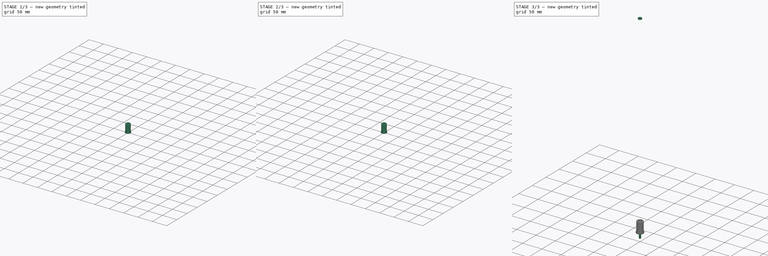
[diagram: build sequence overview — one tinted view per stage of 3, left to right]
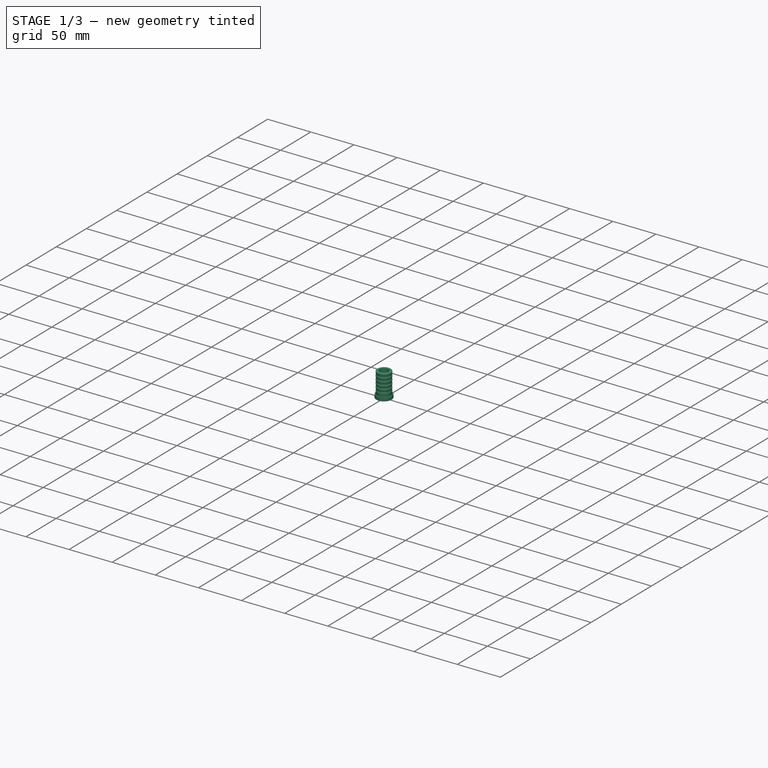
[diagram: stage 1 of 3 — iso view after this stage's code; geometry added in this stage tinted green]
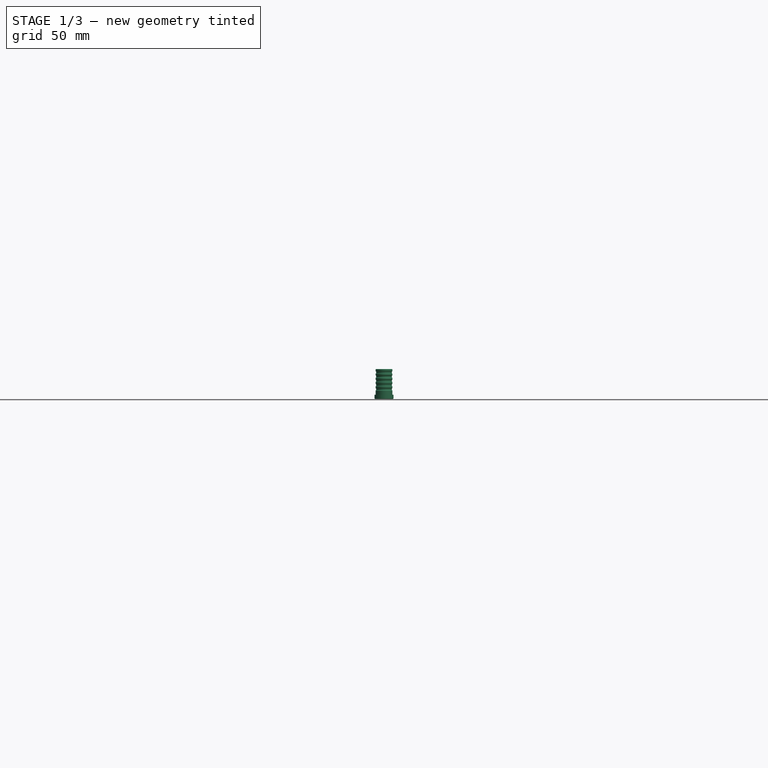
[diagram: stage 1 of 3 — front view after this stage's code; geometry added in this stage tinted green]
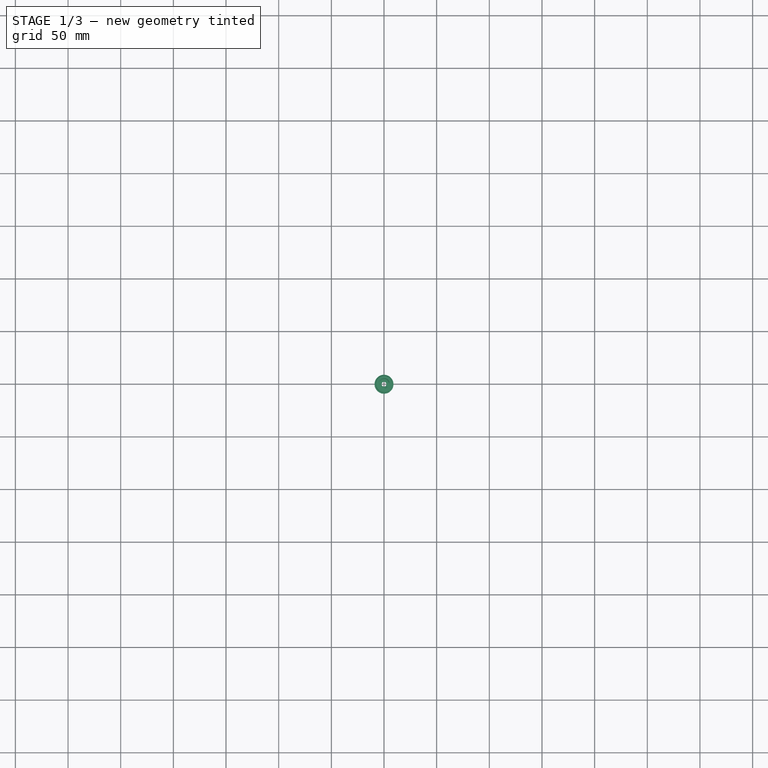
[diagram: stage 1 of 3 — top view after this stage's code; geometry added in this stage tinted green]
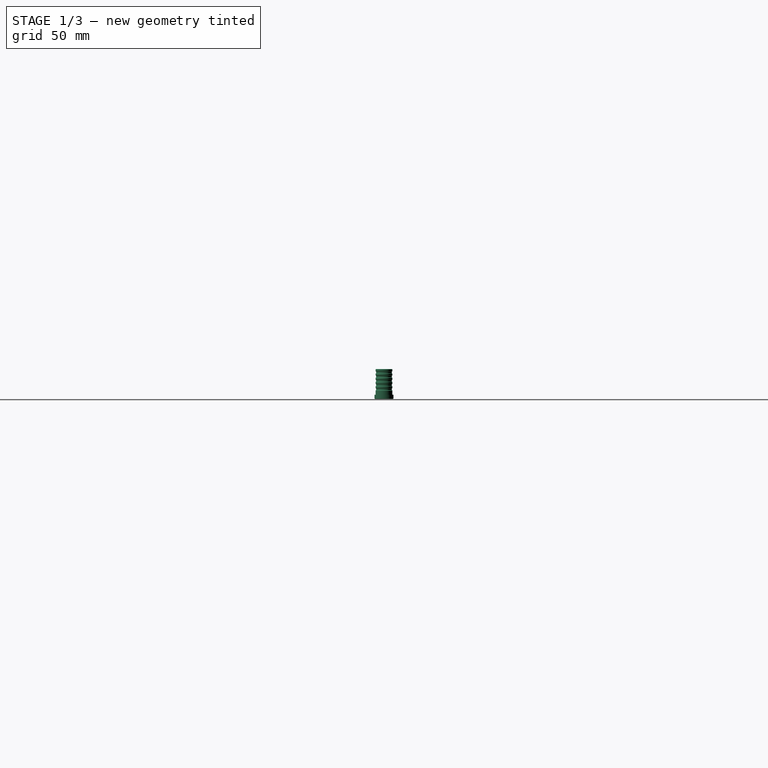
[diagram: stage 1 of 3 — right view after this stage's code; geometry added in this stage tinted green]
FCSTD DOCUMENT  (FreeCAD 0.21RUnknown)
Label: PoleAssembly
License: All rights reserved
LicenseURL: http://en.wikipedia.org/wiki/All_rights_reserved
objects: PartDesign::CoordinateSystem×10, Sketcher::SketchObject×6, PartDesign::Body×3, App::DocumentObjectGroup×3, App::Link×3, PartDesign::Revolution×2, PartDesign::Pocket×2, Part::FeaturePython×2, PartDesign::Pad×1, App::FeaturePython×1, App::Part×1, PartDesign::Hole×1
note: 33 computed .brp shape members not serialized (recipe doc carries the construction recipe); baked Part::Feature solids carry a one-line shape summary decoded from their .brp
EXTERNAL_REF file=Common.FCStd obj=Spreadsheet

FEATURE [PartDesign::CoordinateSystem] LCS_PoleAssembly_Upper
  AttachedBy = Origin
  AttacherType = Attacher::AttachEngine3D
  Placement = pos=(-5.9e-14,1.82e-13,508) rot=(0,0,1;3.14159rad)
  SolverId = Asm4EE
  expr: Placement = PoleBase_UpperCap.Placement * Local_CS203.Placement
FEATURE [App::Part] Assembly
  AssemblyType = Part::Link
  DrawingName = PoleAssembly.FCStd
  Group = -> [LCS_Origin,Constraints,Variables,Configurations,PoleBase_LowerCap,Pole_Body,PoleBase_UpperCap,Screw,Nut,LCS_PoleAssembly_Upper]
  Origin = -> Origin
  PartID = PoleAssembly
  Type = Assembly
FEATURE [PartDesign::CoordinateSystem] Local_CS205  label="LCS_PoleBase_Hex001"
  AttacherType = Attacher::AttachEngine3D
  AttachmentOffset = pos=(0,0,0) rot=(0,0,1;1.5708rad)
  MapMode = 11
  Placement = pos=(0,-1e-15,3) rot=(0,1,0;3.14159rad)
FEATURE [Sketcher::SketchObject] Sketch030  label="PoleBase_Profile_Sketch001"
  FullyConstrained = true
  MapMode = 5
  Placement = pos=(0,0,0) rot=(1,0,0;1.5708rad)
  Support = -> [XZ_Plane069]
  expr: Constraints[7] = <<Common>>#<<Parameters>>.pole_od / 2 - <<Common>>#<<Parameters>>.pole_wall
  expr: Constraints[84] = <<Common>>#<<Parameters>>.pole_od / 2
  expr: Constraints[87] = max(5; Common#<<Parameters>>.pole_od / 2 - <<Common>>#<<Parameters>>.pole_wall - 0.5 - 2.4)
  sketch-geometry (38):
    g0: LineSegment StartX=9 StartY=0.4 StartZ=0 EndX=9 EndY=4 EndZ=0
    g1: LineSegment StartX=9 StartY=4 StartZ=0 EndX=8 EndY=4 EndZ=0
    g2: LineSegment StartX=8 StartY=4 StartZ=0 EndX=8 EndY=8 EndZ=0
    g3: LineSegment StartX=8 StartY=8 StartZ=0 EndX=7.5 EndY=8.5 EndZ=0
    g4: LineSegment StartX=8 StartY=4 StartZ=0 EndX=8 EndY=32 EndZ=0
    g5: LineSegment StartX=7.5 StartY=8.5 StartZ=0 EndX=7.5 EndY=10 EndZ=0
    g6: LineSegment StartX=7.5 StartY=10 StartZ=0 EndX=8 EndY=10.5 EndZ=0
    g7: LineSegment StartX=8 StartY=10.5 StartZ=0 EndX=8 EndY=12 EndZ=0
    g8: LineSegment StartX=8 StartY=12 StartZ=0 EndX=7.5 EndY=12.5 EndZ=0
    g9: LineSegment StartX=7.5 StartY=12.5 StartZ=0 EndX=7.5 EndY=14 EndZ=0
    g10: LineSegment StartX=7.5 StartY=14 StartZ=0 EndX=8 EndY=14.5 EndZ=0
    g11: LineSegment StartX=8 StartY=14.5 StartZ=0 EndX=8 EndY=16 EndZ=0
    g12: LineSegment StartX=8 StartY=16 StartZ=0 EndX=7.5 EndY=16.5 EndZ=0
    g13: LineSegment StartX=7.5 StartY=16.5 StartZ=0 EndX=7.5 EndY=18 EndZ=0
    g14: LineSegment StartX=7.5 StartY=18 StartZ=0 EndX=8 EndY=18.5 EndZ=0
    g15: LineSegment StartX=8 StartY=18.5 StartZ=0 EndX=8 EndY=20 EndZ=0
    g16: LineSegment StartX=8 StartY=20 StartZ=0 EndX=7.5 EndY=20.5 EndZ=0
    g17: LineSegment StartX=7.5 StartY=20.5 StartZ=0 EndX=7.5 EndY=22 EndZ=0
    g18: LineSegment StartX=7.5 StartY=22 StartZ=0 EndX=8 EndY=22.5 EndZ=0
    g19: LineSegment StartX=8 StartY=22.5 StartZ=0 EndX=8 EndY=24 EndZ=0
    g20: LineSegment StartX=8 StartY=24 StartZ=0 EndX=7.5 EndY=24.5 EndZ=0
    g21: LineSegment StartX=7.5 StartY=24.5 StartZ=0 EndX=7.5 EndY=26 EndZ=0
    g22: LineSegment StartX=7.5 StartY=26 StartZ=0 EndX=8 EndY=26.5 EndZ=0
    g23: LineSegment StartX=8 StartY=26.5 StartZ=0 EndX=8 EndY=28 EndZ=0
    g24: LineSegment StartX=8 StartY=28 StartZ=0 EndX=7.5 EndY=28.5 EndZ=0
    g25: LineSegment StartX=7.5 StartY=4 StartZ=0 EndX=7.5 EndY=32 EndZ=0
    g26: LineSegment StartX=7.5 StartY=28.5 StartZ=0 EndX=5.1 EndY=28.5 EndZ=0
    g27: LineSegment StartX=5.1 StartY=28.5 StartZ=0 EndX=5.1 EndY=9 EndZ=0
    g28: LineSegment StartX=5.1 StartY=9 StartZ=0 EndX=4.35 EndY=9 EndZ=0
    g29: LineSegment StartX=1.5 StartY=1.4 StartZ=0 EndX=2.9 EndY=0 EndZ=0
    g30: LineSegment StartX=2.9 StartY=0 StartZ=0 EndX=8.6 EndY=0 EndZ=0
    g31: LineSegment StartX=8.6 StartY=0 StartZ=0 EndX=9 EndY=0.4 EndZ=0
    g32: LineSegment StartX=1.5 StartY=3 StartZ=0 EndX=1.5 EndY=1.4 EndZ=0
    g33: LineSegment StartX=4.35 StartY=3 StartZ=0 EndX=1.5 EndY=3 EndZ=0
    g34: LineSegment StartX=4.35 StartY=8 StartZ=0 EndX=4.35 EndY=3 EndZ=0
    g35: ArcOfCircle CenterX=4.35 CenterY=8.5 CenterZ=0 NormalX=0 NormalY=0 NormalZ=1 AngleXU=0 Radius=0.5 StartAngle=1.5708 EndAngle=4.71239
    g36: LineSegment StartX=4.35 StartY=9 StartZ=0 EndX=4.35 EndY=8 EndZ=0
    g37: LineSegment StartX=3.85 StartY=8.5 StartZ=0 EndX=4.35 EndY=8.5 EndZ=0
  constraints (115):
    c: Coincident(g0,g31)
    c: Vertical(g0)
    c: Coincident(g1,g0)
    c: Horizontal(g1)
    c: Coincident(g3,g2)
    c: Vertical(g2)
    c: Vertical(g4)
    c: DistanceX(g4) = 8
    c: DistanceY(g4) = 32
    c: Coincident(g5,g3)
    c: Vertical(g5)
    c: Coincident(g6,g5)
    c: PointOnObject(g6,g4)
    c: Coincident(g7,g6)
    c: Vertical(g7)
    c: Coincident(g8,g7)
    c: Coincident(g9,g8)
    c: Vertical(g9)
    c: Coincident(g10,g9)
    c: PointOnObject(g10,g4)
    c: Coincident(g11,g10)
    c: Vertical(g11)
    c: Coincident(g12,g11)
    c: Coincident(g13,g12)
    c: Vertical(g13)
    c: Coincident(g14,g13)
    c: Coincident(g15,g14)
    c: Vertical(g15)
    c: Coincident(g16,g15)
    c: Coincident(g17,g16)
    c: Vertical(g17)
    c: Coincident(g18,g17)
    c: Coincident(g19,g18)
    c: Vertical(g19)
    c: Coincident(g20,g19)
    c: Coincident(g21,g20)
    c: Vertical(g21)
    c: Coincident(g22,g21)
    c: Coincident(g23,g22)
    c: Vertical(g23)
    c: Coincident(g24,g23)
    c: Vertical(g25)
    c: PointOnObject(g25,g1)
    c: Coincident(g1,g4)
    c: DistanceX(g25,g1) = 0.5
    c: Equal(g25,g4)
    c: Coincident(g2,g1)
    c: DistanceY(g2,g2) = 4
    c: Angle(g4,g3) = 0.785398
    c: DistanceY(g5,g5) = 1.5
    c: Perpendicular(g3,g6)
    c: Equal(g5,g7)
    c: Equal(g7,g9)
    c: Equal(g9,g11)
    c: Equal(g11,g13)
    c: Equal(g13,g15)
    c: Equal(g15,g17)
    c: Equal(g17,g19)
    c: Equal(g19,g21)
    c: Equal(g21,g23)
    c: Parallel(g3,g8)
    c: Parallel(g8,g12)
    c: Parallel(g12,g16)
    c: Parallel(g16,g20)
    c: Parallel(g20,g24)
    c: Parallel(g22,g18)
    c: Parallel(g18,g14)
    c: Parallel(g14,g10)
    c: Parallel(g10,g6)
    c: PointOnObject(g3,g25)
    c: PointOnObject(g8,g25)
    c: PointOnObject(g12,g25)
    c: PointOnObject(g16,g25)
    c: PointOnObject(g20,g25)
    c: PointOnObject(g24,g25)
    c: PointOnObject(g22,g4)
    c: PointOnObject(g18,g4)
    c: PointOnObject(g14,g4)
    c: Coincident(g26,g24)
    c: Horizontal(g26)
    c: Coincident(g27,g26)
    c: Vertical(g27)
    c: Coincident(g28,g27)
    c: Horizontal(g28)
    c: DistanceX(g31) = 9
    c: Coincident(g32,g29)
    c: DistanceX(g29) = 1.5
    c: DistanceX(g27) = 5.1
    c: Coincident(g29,g30)
    c: Coincident(g30,g31)
    c: Horizontal(g30)
    c: PointOnObject(g29,g-1)
    c: DistanceY(g30,g0) = 4
    c: Angle(g30,g29) = 2.35619
    c: DistanceX(g29) = 2.9
    c: DistanceY(g30,g0) = 0.4
    c: Angle(g31,g30) = 2.35619
    c: Coincident(g33,g32)
    c: Vertical(g32)
    c: Coincident(g34,g33)
    c: Vertical(g34)
    c: DistanceX(g33) = 4.35
    c: Horizontal(g33)
    c: DistanceY(g32) = 3
    c: DistanceY(g34,g34) = 5
    c: Coincident(g35,g34)
    c: Coincident(g35,g28)
    c: Coincident(g36,g28)
    c: Coincident(g36,g34)
    c: Vertical(g36)
    c: PointOnObject(g37,g35)
    c: Coincident(g37,g35)
    c: Horizontal(g37)
    c: DistanceX(g37,g34) = 0.5
    c: DistanceY(g36,g36) = 1
FEATURE [PartDesign::Revolution] Revolution001  label="PoleBase_Revolution001"
  Angle = 360
  Axis = (0,-2e-16,1)
  Base = (0,0,0)
  Placement = pos=(0,0,0) rot=(1,0,0;1.5708rad)
  Profile = -> Sketch030
  ReferenceAxis = -> Sketch030 [V_Axis]
  Reversed = true
FEATURE [PartDesign::CoordinateSystem] Local_CS206  label="LCS_PoleBase_Bottom001"
  AttacherType = Attacher::AttachEngine3D
  MapMode = 11
  Placement = pos=(0,0,3) rot=(0.707107,-0.707107,0;3.14159rad)
  Support = -> [Revolution001]
FEATURE [PartDesign::CoordinateSystem] Local_CS207  label="LCS_PoleBase_RimTop001"
  AttacherType = Attacher::AttachEngine3D
  MapMode = 11
  Placement = pos=(0,0,4) rot=(0.707107,-0.707107,0;3.14159rad)
  Support = -> [Revolution001]
FEATURE [Sketcher::SketchObject] Sketch031  label="PoleBase_Nut_Sketch001"
  AttachmentOffset = pos=(0,0,8) rot=(0,0,1;0rad)
  ExternalGeometry = -> [Revolution001]
  FullyConstrained = true
  MapMode = 5
  Placement = pos=(0,0,8) rot=(0,0,1;0rad)
  Support = -> [XY_Plane069]
  sketch-geometry (10):
    g0: LineSegment StartX=-3.76721 StartY=2.175 StartZ=0 EndX=3.76721 EndY=-2.175 EndZ=0
    g1: LineSegment StartX=-3.76721 StartY=-2.175 StartZ=0 EndX=3.76721 EndY=2.175 EndZ=0
    g2: LineSegment StartX=-3.76721 StartY=2.175 StartZ=0 EndX=0 EndY=-4.35 EndZ=0
    g3: LineSegment StartX=-3.76721 StartY=2.175 StartZ=0 EndX=3.76721 EndY=2.175 EndZ=0
    g4: ArcOfCircle CenterX=0 CenterY=-7e-16 CenterZ=0 NormalX=0 NormalY=0 NormalZ=1 AngleXU=0 Radius=4.35 StartAngle=1.5708 EndAngle=2.61799
    g5: ArcOfCircle CenterX=0 CenterY=-7e-16 CenterZ=0 NormalX=0 NormalY=0 NormalZ=1 AngleXU=0 Radius=4.35 StartAngle=3.66519 EndAngle=4.71239
    g6: ArcOfCircle CenterX=0 CenterY=-7e-16 CenterZ=0 NormalX=0 NormalY=0 NormalZ=1 AngleXU=0 Radius=4.35 StartAngle=5.75959 EndAngle=6.80678
    g7: LineSegment StartX=3e-16 StartY=4.35 StartZ=0 EndX=3.76721 EndY=2.175 EndZ=0
    g8: LineSegment StartX=3.76721 StartY=-2.175 StartZ=0 EndX=-4e-16 EndY=-4.35 EndZ=0
    g9: LineSegment StartX=-3.76721 StartY=-2.175 StartZ=0 EndX=-3.76721 EndY=2.175 EndZ=0
  constraints (28):
    c: PointOnObject(g0,g-3)
    c: PointOnObject(g0,g-3)
    c: PointOnObject(g1,g-3)
    c: PointOnObject(g1,g-3)
    c: Coincident(g2,g0)
    c: PointOnObject(g2,g-2)
    c: Coincident(g3,g0)
    c: Coincident(g3,g1)
    c: Horizontal(g3)
    c: Equal(g2,g3)
    c: PointOnObject(g2,g-3)
    c: PointOnObject(g-3,g1)
    c: PointOnObject(g-3,g0)
    c: Coincident(g4,g-3)
    c: Coincident(g4,g0)
    c: PointOnObject(g4,g-2)
    c: Coincident(g5,g4)
    c: Coincident(g5,g1)
    c: PointOnObject(g5,g-2)
    c: Coincident(g6,g4)
    c: Coincident(g6,g0)
    c: PointOnObject(g6,g1)
    c: Coincident(g7,g4)
    c: Coincident(g7,g6)
    c: Coincident(g8,g6)
    c: Coincident(g8,g5)
    c: Coincident(g9,g5)
    c: Coincident(g9,g4)
FEATURE [PartDesign::Pocket] Pocket001
  BaseFeature = -> Revolution001
  Direction = (0,0,-1)
  Length = 5
  Length2 = 5
  Placement = pos=(0,0,0) rot=(1,0,0;1.5708rad)
  Profile = -> Sketch031
  ReferenceAxis = -> Sketch031 [N_Axis]
  Reversed = true
  Type = 0
FEATURE [Sketcher::SketchObject] Sketch032
  FullyConstrained = true
  MapMode = 5
  Support = -> [XY_Plane069]
  sketch-geometry (1):
    g0: Circle CenterX=0 CenterY=0 CenterZ=0 NormalX=0 NormalY=0 NormalZ=1 AngleXU=0 Radius=2.5
  constraints (2):
    c: Coincident(g0,g-1)
    c: Diameter(g0) = 5
FEATURE [PartDesign::Hole] Hole
  BaseFeature = -> Pocket001
  CustomThreadClearance = 0.3
  Depth = 77.1154
  DepthType = 1
  Diameter = 4.5
  DrillForDepth = false
  DrillPoint = 1
  DrillPointAngle = 118
  HoleCutCountersinkAngle = 90
  HoleCutCustomValues = false
  HoleCutDepth = 0
  HoleCutDiameter = 6.1
  HoleCutType = 0
  ModelThread = true
  Placement = pos=(0,0,0) rot=(1,0,0;1.5708rad)
  Profile = -> Sketch032
  Reversed = true
  Tapered = false
  TaperedAngle = 90
  ThreadClass = 0
  ThreadDepth = 77.1154
  ThreadDepthType = 0
  ThreadDirection = 0
  ThreadFit = 0
  ThreadSize = 13
  ThreadType = 1
  Threaded = true
  UseCustomThreadClearance = true
  expr: CustomThreadClearance = <<Common>>#<<Parameters>>.acc_FDMtol
FEATURE [PartDesign::Body] Body022016  label="PoleBaseThreaded"
  Group = -> [Local_CS205,Local_CS206,Local_CS207,Sketch030,Revolution001,Sketch031,Pocket001,Sketch032,Hole]
  Origin = -> Origin069
  Tip = -> Hole
FEATURE [App::DocumentObjectGroup] Parts
  Group = -> [Body015,Body022015,Body022016]

RESOLVED EXTERNAL PARTS (link-assembly join: the EXTERNAL_REF files above that resolve inside this repo's crawl, each included once):
---- part Common.FCStd = doc fcstd_f532bfd99702 (72826 chars; too large to inline — full recipe in that document) ----
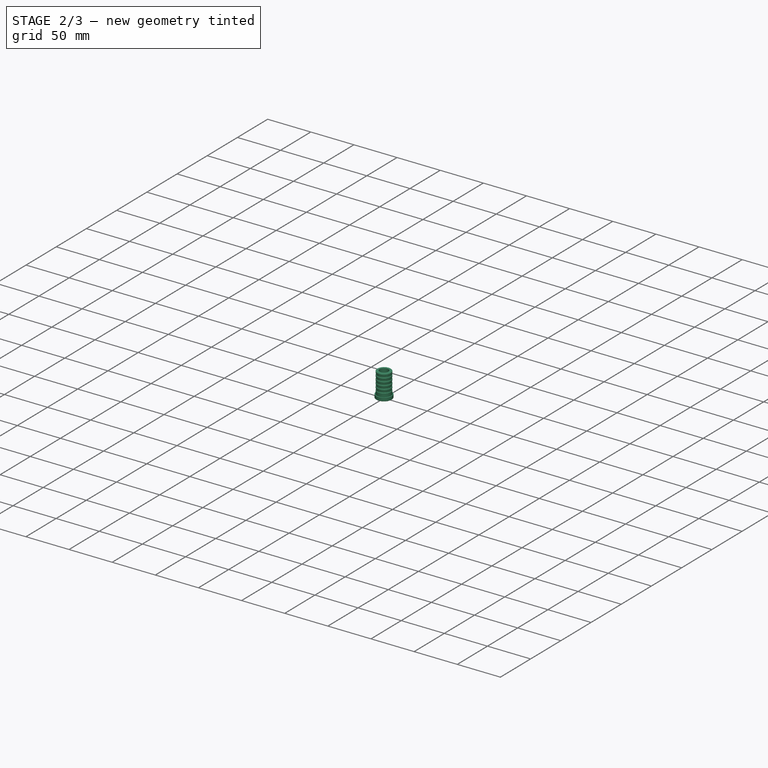
[diagram: stage 2 of 3 — iso view after this stage's code; geometry added in this stage tinted green]
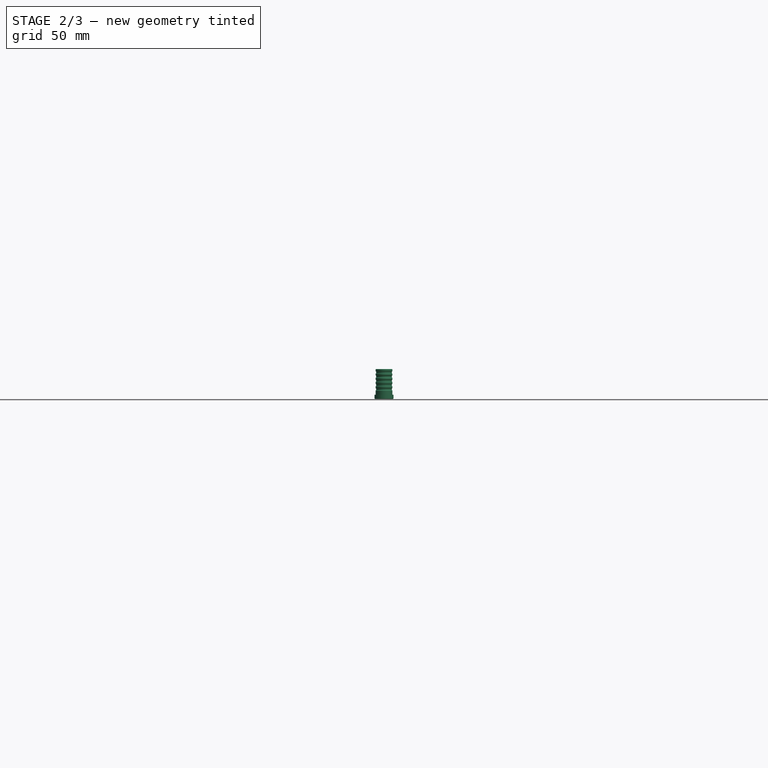
[diagram: stage 2 of 3 — front view after this stage's code; geometry added in this stage tinted green]
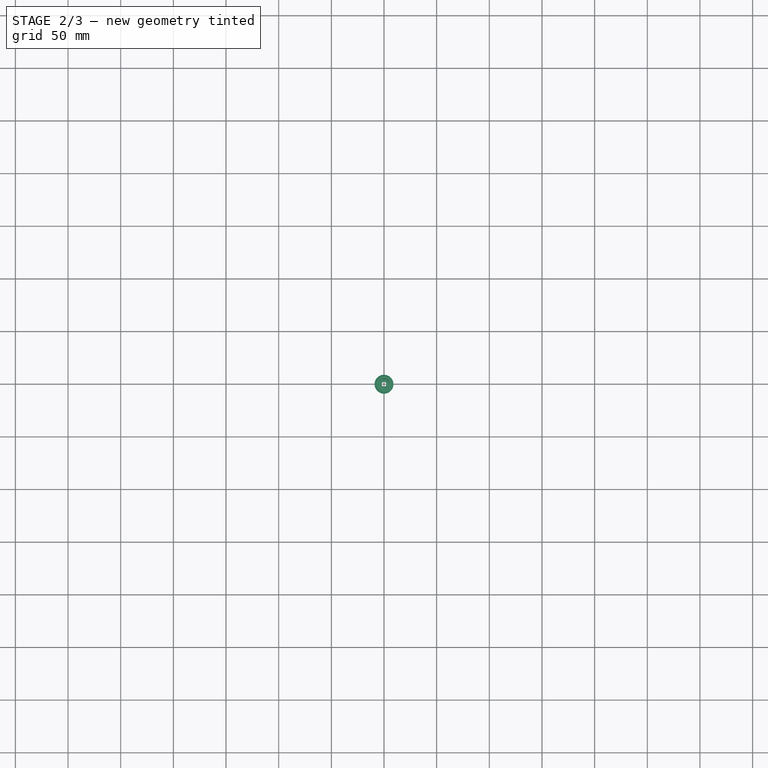
[diagram: stage 2 of 3 — top view after this stage's code; geometry added in this stage tinted green]
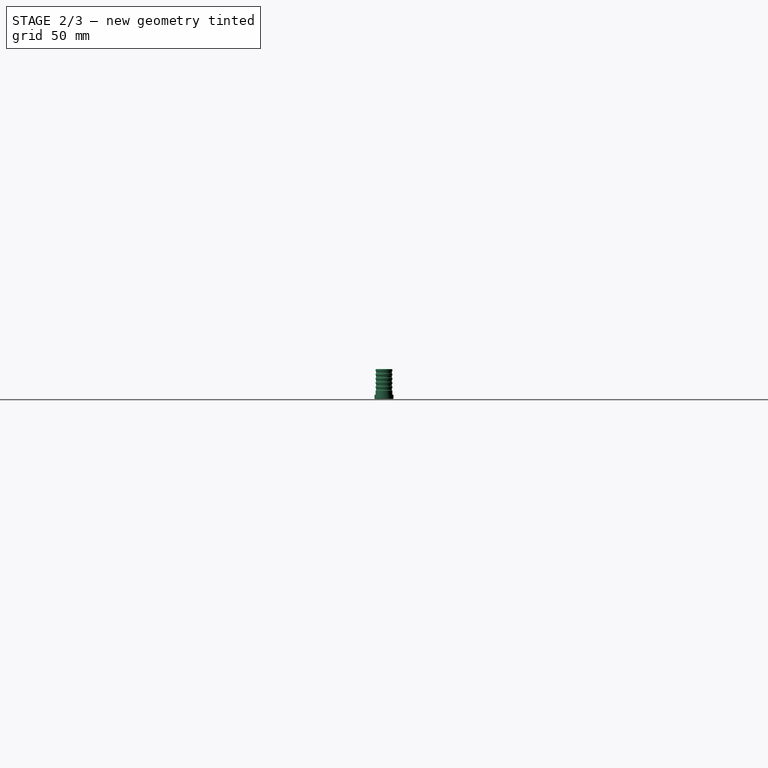
[diagram: stage 2 of 3 — right view after this stage's code; geometry added in this stage tinted green]
FEATURE [PartDesign::CoordinateSystem] Local_CS040  label="LCS_PoleBase"
  AttacherType = Attacher::AttachEngine3D
  MapMode = 11
  Placement = pos=(0,0,0) rot=(0,0,1;1.5708rad)
  Support = -> [Pad014]
FEATURE [PartDesign::CoordinateSystem] Local_CS199  label="LCS_PoleUpper"
  AttacherType = Attacher::AttachEngine3D
  MapMode = 11
  Placement = pos=(0,0,500) rot=(0.707107,-0.707107,0;3.14159rad)
  Support = -> [Pad014]
FEATURE [PartDesign::Body] Body015  label="Pole_Body"
  Group = -> [Sketch028,Pad014,Local_CS040,Local_CS199]
  Origin = -> Origin027
  Placement = pos=(0,0,4) rot=(0,0,1;0rad)
  Tip = -> Pad014
FEATURE [Sketcher::SketchObject] Sketch  label="PoleBase_Profile_Sketch"
  FullyConstrained = true
  MapMode = 5
  Placement = pos=(0,0,0) rot=(1,0,0;1.5708rad)
  Support = -> [XZ_Plane068]
  expr: Constraints[7] = <<Common>>#<<Parameters>>.pole_od / 2 - <<Common>>#<<Parameters>>.pole_wall
  expr: Constraints[86] = <<Common>>#<<Parameters>>.pole_od / 2
  expr: Constraints[90] = max(5; Common#<<Parameters>>.pole_od / 2 - <<Common>>#<<Parameters>>.pole_wall - 0.5 - 2.4)
  sketch-geometry (34):
    g0: LineSegment StartX=9 StartY=0.4 StartZ=0 EndX=9 EndY=4 EndZ=0
    g1: LineSegment StartX=9 StartY=4 StartZ=0 EndX=8 EndY=4 EndZ=0
    g2: LineSegment StartX=8 StartY=4 StartZ=0 EndX=8 EndY=8 EndZ=0
    g3: LineSegment StartX=8 StartY=8 StartZ=0 EndX=7.5 EndY=8.5 EndZ=0
    g4: LineSegment StartX=8 StartY=4 StartZ=0 EndX=8 EndY=32 EndZ=0
    g5: LineSegment StartX=7.5 StartY=8.5 StartZ=0 EndX=7.5 EndY=10 EndZ=0
    g6: LineSegment StartX=7.5 StartY=10 StartZ=0 EndX=8 EndY=10.5 EndZ=0
    g7: LineSegment StartX=8 StartY=10.5 StartZ=0 EndX=8 EndY=12 EndZ=0
    g8: LineSegment StartX=8 StartY=12 StartZ=0 EndX=7.5 EndY=12.5 EndZ=0
    g9: LineSegment StartX=7.5 StartY=12.5 StartZ=0 EndX=7.5 EndY=14 EndZ=0
    g10: LineSegment StartX=7.5 StartY=14 StartZ=0 EndX=8 EndY=14.5 EndZ=0
    g11: LineSegment StartX=8 StartY=14.5 StartZ=0 EndX=8 EndY=16 EndZ=0
    g12: LineSegment StartX=8 StartY=16 StartZ=0 EndX=7.5 EndY=16.5 EndZ=0
    g13: LineSegment StartX=7.5 StartY=16.5 StartZ=0 EndX=7.5 EndY=18 EndZ=0
    g14: LineSegment StartX=7.5 StartY=18 StartZ=0 EndX=8 EndY=18.5 EndZ=0
    g15: LineSegment StartX=8 StartY=18.5 StartZ=0 EndX=8 EndY=20 EndZ=0
    g16: LineSegment StartX=8 StartY=20 StartZ=0 EndX=7.5 EndY=20.5 EndZ=0
    g17: LineSegment StartX=7.5 StartY=20.5 StartZ=0 EndX=7.5 EndY=22 EndZ=0
    g18: LineSegment StartX=7.5 StartY=22 StartZ=0 EndX=8 EndY=22.5 EndZ=0
    g19: LineSegment StartX=8 StartY=22.5 StartZ=0 EndX=8 EndY=24 EndZ=0
    g20: LineSegment StartX=8 StartY=24 StartZ=0 EndX=7.5 EndY=24.5 EndZ=0
    g21: LineSegment StartX=7.5 StartY=24.5 StartZ=0 EndX=7.5 EndY=26 EndZ=0
    g22: LineSegment StartX=7.5 StartY=26 StartZ=0 EndX=8 EndY=26.5 EndZ=0
    g23: LineSegment StartX=8 StartY=26.5 StartZ=0 EndX=8 EndY=28 EndZ=0
    g24: LineSegment StartX=8 StartY=28 StartZ=0 EndX=7.5 EndY=28.5 EndZ=0
    g25: LineSegment StartX=7.5 StartY=4 StartZ=0 EndX=7.5 EndY=32 EndZ=0
    g26: LineSegment StartX=7.5 StartY=28.5 StartZ=0 EndX=5.1 EndY=28.5 EndZ=0
    g27: LineSegment StartX=5.1 StartY=28.5 StartZ=0 EndX=5.1 EndY=8 EndZ=0
    g28: LineSegment StartX=5.1 StartY=8 StartZ=0 EndX=2.5 EndY=8 EndZ=0
    g29: LineSegment StartX=2.5 StartY=8 StartZ=0 EndX=2.5 EndY=0.4 EndZ=0
    g30: LineSegment StartX=2.5 StartY=0.4 StartZ=0 EndX=2.9 EndY=0 EndZ=0
    g31: LineSegment StartX=2.9 StartY=0 StartZ=0 EndX=8.6 EndY=0 EndZ=0
    g32: LineSegment StartX=8.6 StartY=0 StartZ=0 EndX=9 EndY=0.4 EndZ=0
    g33: LineSegment StartX=2.5 StartY=0.4 StartZ=0 EndX=9 EndY=0.4 EndZ=0
  constraints (102):
    c: Coincident(g0,g32)
    c: Vertical(g0)
    c: Coincident(g1,g0)
    c: Horizontal(g1)
    c: Coincident(g3,g2)
    c: Vertical(g2)
    c: Vertical(g4)
    c: DistanceX(g4) = 8
    c: DistanceY(g4) = 32
    c: Coincident(g5,g3)
    c: Vertical(g5)
    c: Coincident(g6,g5)
    c: PointOnObject(g6,g4)
    c: Coincident(g7,g6)
    c: Vertical(g7)
    c: Coincident(g8,g7)
    c: Coincident(g9,g8)
    c: Vertical(g9)
    c: Coincident(g10,g9)
    c: PointOnObject(g10,g4)
    c: Coincident(g11,g10)
    c: Vertical(g11)
    c: Coincident(g12,g11)
    c: Coincident(g13,g12)
    c: Vertical(g13)
    c: Coincident(g14,g13)
    c: Coincident(g15,g14)
    c: Vertical(g15)
    c: Coincident(g16,g15)
    c: Coincident(g17,g16)
    c: Vertical(g17)
    c: Coincident(g18,g17)
    c: Coincident(g19,g18)
    c: Vertical(g19)
    c: Coincident(g20,g19)
    c: Coincident(g21,g20)
    c: Vertical(g21)
    c: Coincident(g22,g21)
    c: Coincident(g23,g22)
    c: Vertical(g23)
    c: Coincident(g24,g23)
    c: Vertical(g25)
    c: PointOnObject(g25,g1)
    c: Coincident(g1,g4)
    c: DistanceX(g25,g1) = 0.5
    c: Equal(g25,g4)
    c: Coincident(g2,g1)
    c: DistanceY(g2,g2) = 4
    c: Angle(g4,g3) = 0.785398
    c: DistanceY(g5,g5) = 1.5
    c: Perpendicular(g3,g6)
    c: Equal(g5,g7)
    c: Equal(g7,g9)
    c: Equal(g9,g11)
    c: Equal(g11,g13)
    c: Equal(g13,g15)
    c: Equal(g15,g17)
    c: Equal(g17,g19)
    c: Equal(g19,g21)
    c: Equal(g21,g23)
    c: Parallel(g3,g8)
    c: Parallel(g8,g12)
    c: Parallel(g12,g16)
    c: Parallel(g16,g20)
    c: Parallel(g20,g24)
    c: Parallel(g22,g18)
    c: Parallel(g18,g14)
    c: Parallel(g14,g10)
    c: Parallel(g10,g6)
    c: PointOnObject(g3,g25)
    c: PointOnObject(g8,g25)
    c: PointOnObject(g12,g25)
    c: PointOnObject(g16,g25)
    c: PointOnObject(g20,g25)
    c: PointOnObject(g24,g25)
    c: PointOnObject(g22,g4)
    c: PointOnObject(g18,g4)
    c: PointOnObject(g14,g4)
    c: Coincident(g26,g24)
    c: Horizontal(g26)
    c: Coincident(g27,g26)
    c: Vertical(g27)
    c: Coincident(g28,g27)
    c: Horizontal(g28)
    c: Coincident(g29,g28)
    c: Vertical(g29)
    c: DistanceX(g32) = 9
    c: Coincident(g29,g30)
    c: DistanceX(g30) = 2.5
    c: DistanceY(g0,g27) = 4
    c: DistanceX(g27) = 5.1
    c: Coincident(g30,g31)
    c: Coincident(g31,g32)
    c: Horizontal(g31)
    c: PointOnObject(g30,g-1)
    c: DistanceY(g31,g0) = 4
    c: Equal(g32,g30)
    c: Coincident(g33,g29)
    c: Coincident(g33,g0)
    c: Horizontal(g33)
    c: DistanceY(g30,g29) = 0.4
    c: Angle(g31,g30) = 2.35619
FEATURE [PartDesign::Revolution] Revolution  label="PoleBase_Revolution"
  Angle = 360
  Axis = (0,-2e-16,1)
  Base = (0,0,0)
  Placement = pos=(0,0,0) rot=(1,0,0;1.5708rad)
  Profile = -> Sketch
  ReferenceAxis = -> Sketch [V_Axis]
  Reversed = true
FEATURE [PartDesign::CoordinateSystem] Local_CS203  label="LCS_PoleBase_Bottom"
  AttacherType = Attacher::AttachEngine3D
  MapMode = 11
  Placement = pos=(4e-16,0,0) rot=(0.707107,-0.707107,0;3.14159rad)
  Support = -> [Revolution]
FEATURE [PartDesign::CoordinateSystem] Local_CS204  label="LCS_PoleBase_RimTop"
  AttacherType = Attacher::AttachEngine3D
  MapMode = 11
  Placement = pos=(0,9e-16,4) rot=(0.707107,-0.707107,0;3.14159rad)
  Support = -> [Revolution]
FEATURE [Sketcher::SketchObject] Sketch029  label="PoleBase_Nut_Sketch"
  AttachmentOffset = pos=(0,0,8) rot=(0,0,1;0rad)
  FullyConstrained = true
  MapMode = 5
  Placement = pos=(0,0,8) rot=(0,0,1;0rad)
  Support = -> [XY_Plane068]
  sketch-geometry (7):
    g0: LineSegment StartX=2.3094 StartY=-4 StartZ=0 EndX=4.6188 EndY=0 EndZ=0
    g1: LineSegment StartX=4.6188 StartY=0 StartZ=0 EndX=2.3094 EndY=4 EndZ=0
    g2: LineSegment StartX=2.3094 StartY=4 StartZ=0 EndX=-2.3094 EndY=4 EndZ=0
    g3: LineSegment StartX=-2.3094 StartY=4 StartZ=0 EndX=-4.6188 EndY=0 EndZ=0
    g4: LineSegment StartX=-4.6188 StartY=0 StartZ=0 EndX=-2.3094 EndY=-4 EndZ=0
    g5: LineSegment StartX=-2.3094 StartY=-4 StartZ=0 EndX=2.3094 EndY=-4 EndZ=0
    g6: Circle CenterX=0 CenterY=0 CenterZ=0 NormalX=0 NormalY=0 NormalZ=1 AngleXU=0 Radius=4.6188
  constraints (16):
    c: Coincident(g0,g1)
    c: Coincident(g1,g2)
    c: Coincident(g2,g3)
    c: Coincident(g3,g4)
    c: Coincident(g4,g5)
    c: Coincident(g5,g0)
    c: Equal(g0, g1-g5) x5
    c: PointOnObject(g0,g6)
    c: PointOnObject(g1,g6)
    c: PointOnObject(g2,g6)
    c: PointOnObject(g3,g6)
    c: PointOnObject(g4,g6)
    c: PointOnObject(g5,g6)
    c: Coincident(g6,g-1)
    c: PointOnObject(g3,g-1)
    c: DistanceY(g4,g2) = 8
FEATURE [PartDesign::Pocket] Pocket  label="PoleBase_Nut_Cut"
  BaseFeature = -> Revolution
  Direction = (0,0,-1)
  Length = 5
  Length2 = 5
  Placement = pos=(0,0,0) rot=(1,0,0;1.5708rad)
  Profile = -> Sketch029
  ReferenceAxis = -> Sketch029 [N_Axis]
  Type = 0
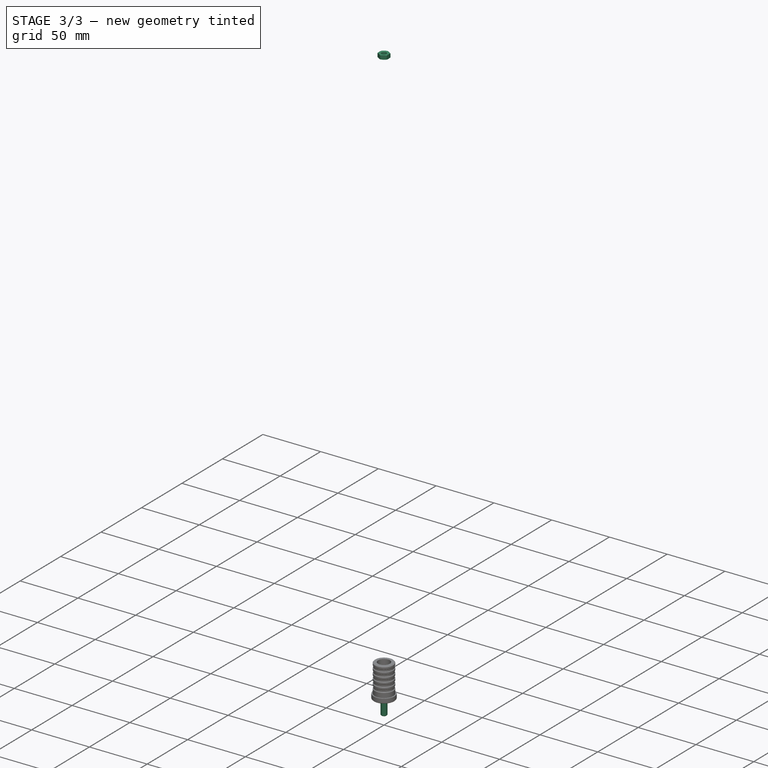
[diagram: stage 3 of 3 — iso view after this stage's code; geometry added in this stage tinted green]
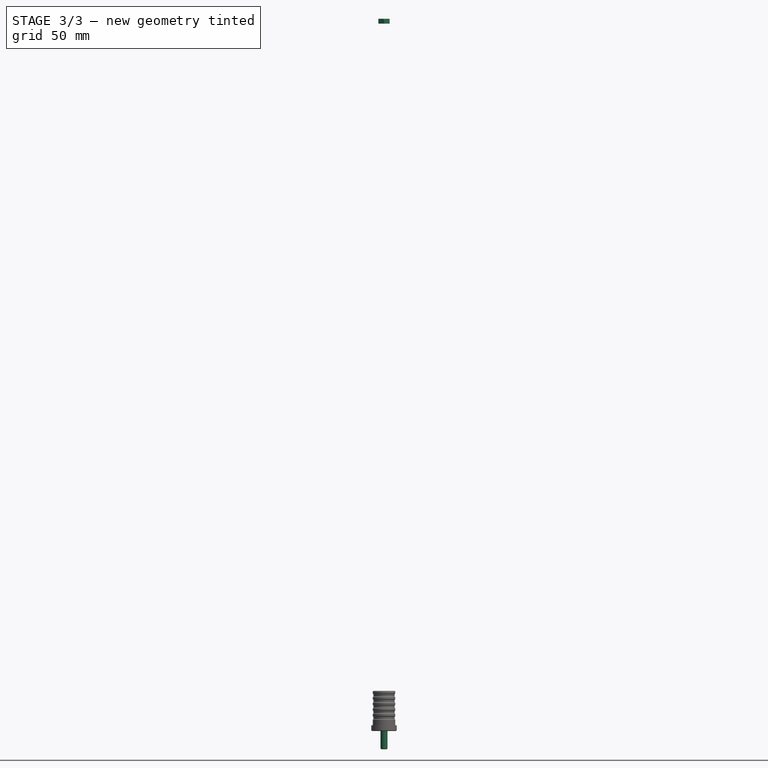
[diagram: stage 3 of 3 — front view after this stage's code; geometry added in this stage tinted green]
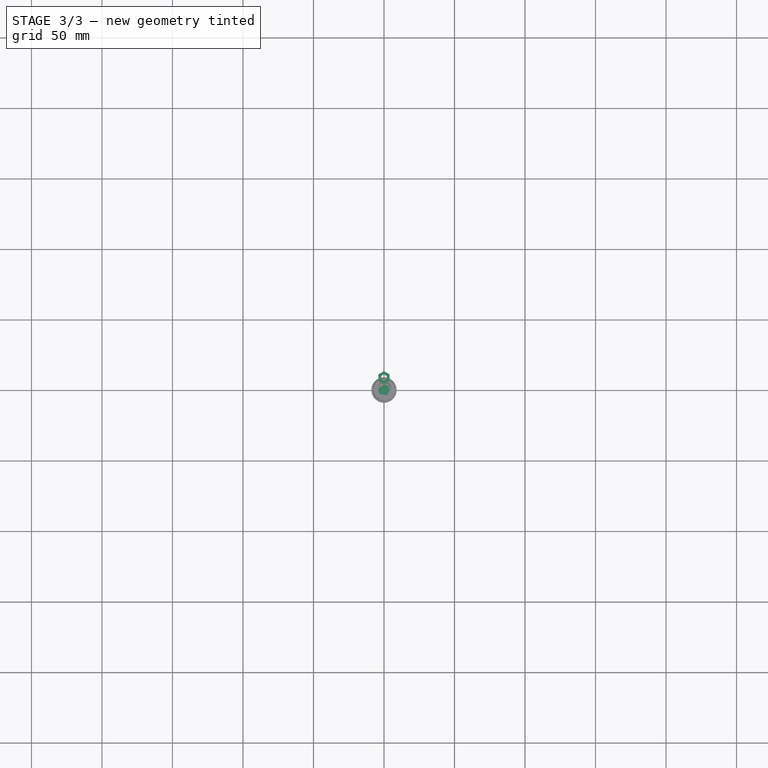
[diagram: stage 3 of 3 — top view after this stage's code; geometry added in this stage tinted green]
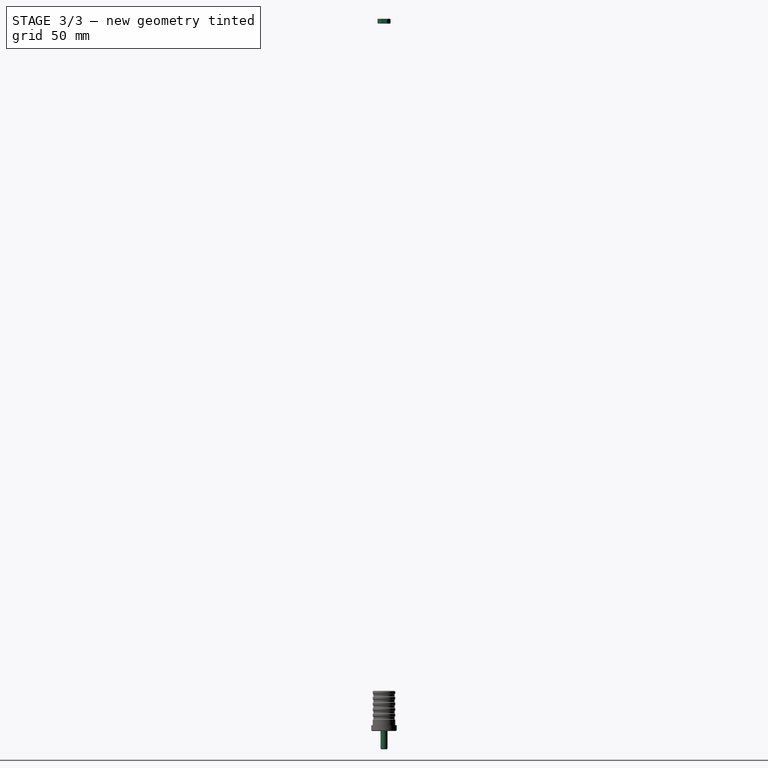
[diagram: stage 3 of 3 — right view after this stage's code; geometry added in this stage tinted green]
FEATURE [Sketcher::SketchObject] Sketch028  label="Pole_ProfileSketch"
  FullyConstrained = true
  MapMode = 5
  Support = -> [XY_Plane027]
  expr: .Constraints.OD = <<Common>>#<<Parameters>>.pole_od
  expr: Constraints[3] = .Constraints.OD - <<Common>>#<<Parameters>>.pole_wall * 2 mm
  sketch-geometry (2):
    g0: Circle CenterX=0 CenterY=0 CenterZ=0 NormalX=0 NormalY=0 NormalZ=1 AngleXU=0 Radius=9
    g1: Circle CenterX=0 CenterY=0 CenterZ=0 NormalX=0 NormalY=0 NormalZ=1 AngleXU=0 Radius=8
  constraints (4):
    c: Coincident(g0,g-1)
    c: Coincident(g1,g0)
    c: Diameter(g0) = 18  'OD'
    c: Diameter(g1) = 16
FEATURE [PartDesign::Pad] Pad014  label="Pole_Pad"
  Direction = (0,0,1)
  Length = 500
  Length2 = 100
  Profile = -> Sketch028
  Type = 0
  expr: Length = <<Common>>#<<Parameters>>.pole_segment
FEATURE [PartDesign::CoordinateSystem] Local_CS202  label="LCS_PoleBase_Hex"
  AttacherType = Attacher::AttachEngine3D
  AttachmentOffset = pos=(0,0,0) rot=(0,0,1;1.5708rad)
  MapMode = 11
  Placement = pos=(0,7e-16,3) rot=(0,-1,0;3.14159rad)
  Support = -> [Pocket]
FEATURE [PartDesign::Body] Body022015  label="PoleBase"
  Group = -> [Local_CS202,Local_CS203,Local_CS204,Sketch,Revolution,Sketch029,Pocket]
  Origin = -> Origin068
  Tip = -> Pocket
FEATURE [PartDesign::CoordinateSystem] LCS_Origin
  AttacherType = Attacher::AttachEngine3D
  MapMode = 2
  Support = -> [X_Axis]
FEATURE [App::DocumentObjectGroup] Constraints
FEATURE [App::FeaturePython] Variables  # WARN: FeaturePython — macro-defined, semantics opaque (R4)
  Type = App::PropertyContainer
FEATURE [App::DocumentObjectGroup] Configurations
FEATURE [App::Link] PoleBase_LowerCap
  AttachedBy = #Local_CS203
  AttachedTo = Parent Assembly#LCS_Origin
  AttachmentOffset = pos=(0,0,0) rot=(1,0,0;3.14159rad)
  LinkPlacement = pos=(0,-4e-16,0) rot=(0,0,1;1.5708rad)
  LinkedObject = -> Body022015
  Placement = pos=(0,-4e-16,0) rot=(0,0,1;1.5708rad)
  SolverId = Asm4EE
  expr: Placement = LCS_Origin.Placement * AttachmentOffset * Local_CS203.Placement ^ -1
FEATURE [App::Link] Pole_Body  label="Pole_Body001"
  AttachedBy = #Local_CS040
  AttachedTo = PoleBase_LowerCap#Local_CS204
  AttachmentOffset = pos=(0,0,0) rot=(1,0,0;3.14159rad)
  LinkPlacement = pos=(-5e-16,5e-16,4) rot=(0,0,1;4.71239rad)
  LinkedObject = -> Body015
  Placement = pos=(-5e-16,5e-16,4) rot=(0,0,1;4.71239rad)
  SolverId = Asm4EE
  expr: Placement = PoleBase_LowerCap.Placement * Local_CS204.Placement * AttachmentOffset * Local_CS040.Placement ^ -1
FEATURE [App::Link] PoleBase_UpperCap
  AttachedBy = #Local_CS204
  AttachedTo = Pole_Body#Local_CS199
  AttachmentOffset = pos=(0,0,0) rot=(1,0,0;3.14159rad)
  LinkPlacement = pos=(-5.94e-14,1.819e-13,508) rot=(0.707107,0.707107,0;3.14159rad)
  LinkedObject = -> Body022015
  Placement = pos=(-5.94e-14,1.819e-13,508) rot=(0.707107,0.707107,0;3.14159rad)
  SolverId = Asm4EE
  expr: Placement = Pole_Body.Placement * Local_CS199.Placement * AttachmentOffset * Local_CS204.Placement ^ -1
FEATURE [Part::FeaturePython] Screw  label="M5x16-Screw"  # Fasteners workbench fastener (typed FeaturePython)
  AttachedBy = Origin
  AttachedTo = PoleBase_LowerCap#Local_CS202
  AttachmentOffset = pos=(0,0,0) rot=(-1,0,0;3.14159rad)
  Placement = pos=(0,0,3) rot=(0,0,-1;1.5708rad)
  SolverId = Asm4EE
  diameter = 7
  invert = false
  leftHanded = false
  length = 4
  lengthCustom = 16
  matchOuter = false
  offset = 0
  thread = false
  type = 40
  expr: Placement = PoleBase_LowerCap.Placement * Local_CS202.Placement * AttachmentOffset
FEATURE [Part::FeaturePython] Nut  label="M5-Nut"  # Fasteners workbench fastener (typed FeaturePython)
  AttachedBy = Origin
  AttachedTo = PoleBase_UpperCap#Local_CS202
  AttachmentOffset = pos=(0,0,0) rot=(1,0,0;3.14159rad)
  Placement = pos=(-5.9e-14,1.82e-13,505) rot=(0.707107,-0.707107,0;3.14159rad)
  SolverId = Asm4EE
  diameter = 7
  invert = false
  leftHanded = false
  matchOuter = false
  offset = 0
  thread = false
  type = 22
  expr: Placement = PoleBase_UpperCap.Placement * Local_CS202.Placement * AttachmentOffset
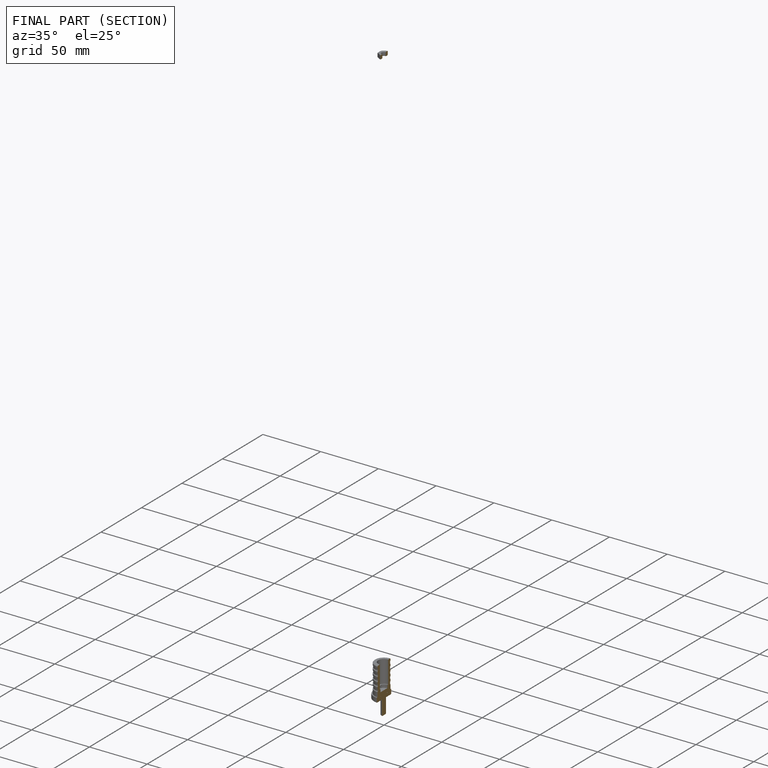
[diagram: finished part — half-section view (interior)]
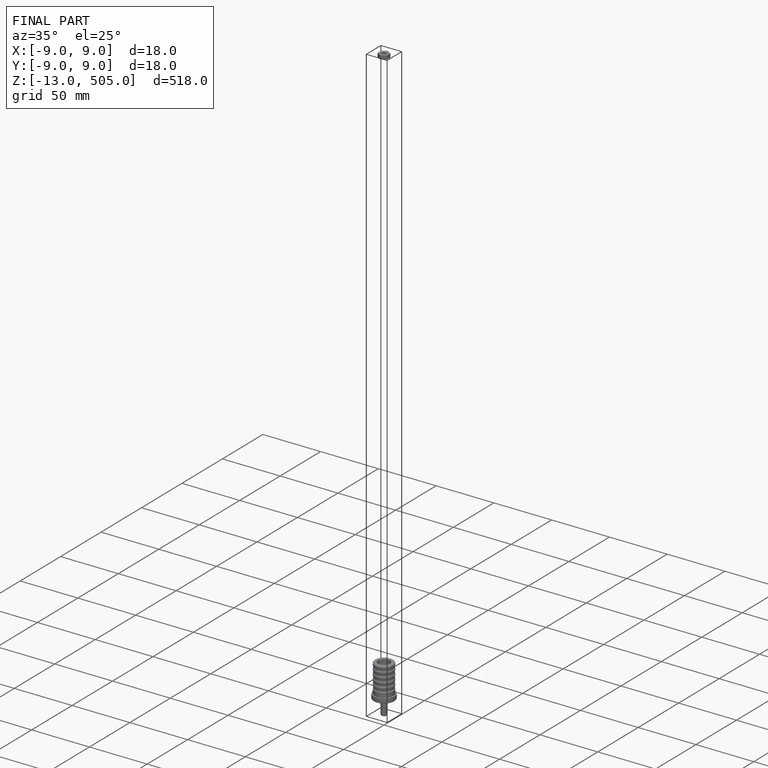
[diagram: finished part — iso view with bounding-box wireframe]
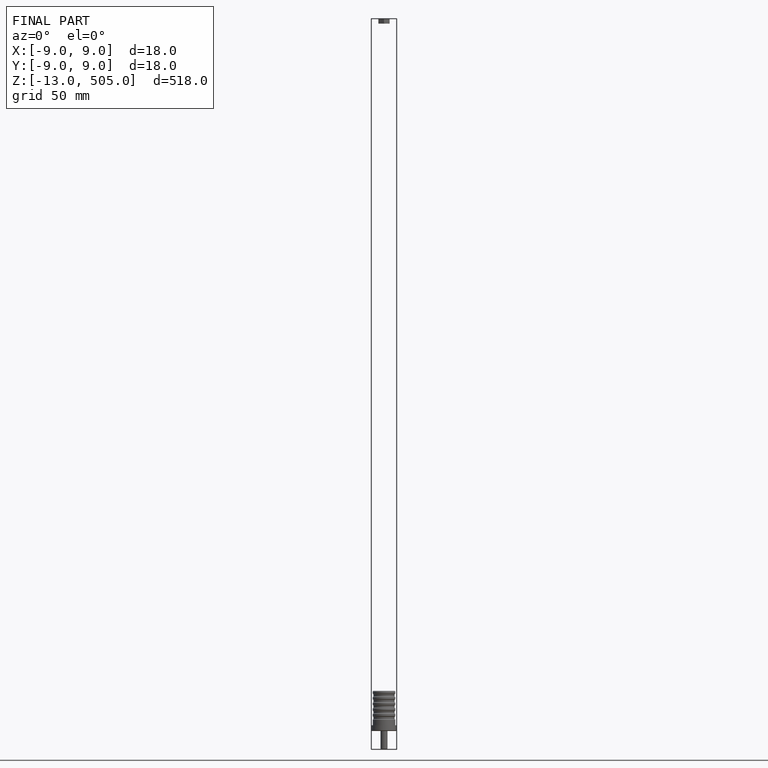
[diagram: finished part — front view with bounding-box wireframe]
